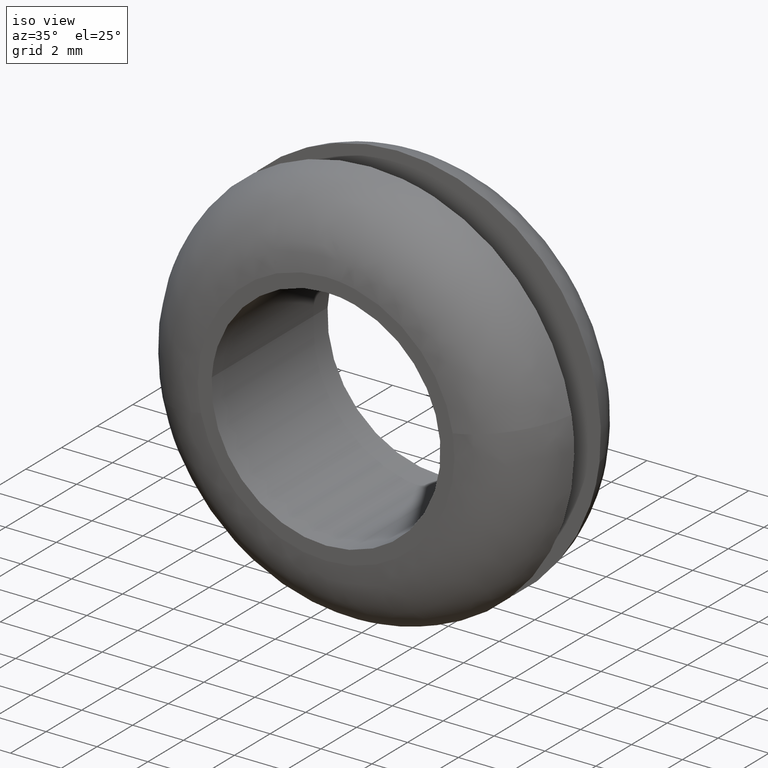
[diagram: clean part render]
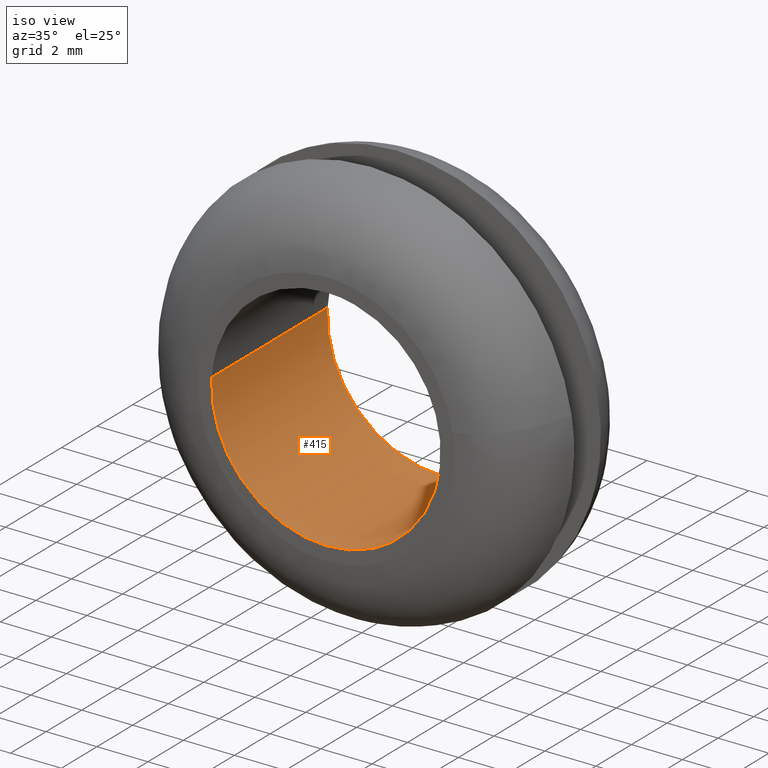
[diagram: same view with one face highlighted and labeled with its STEP entity id]
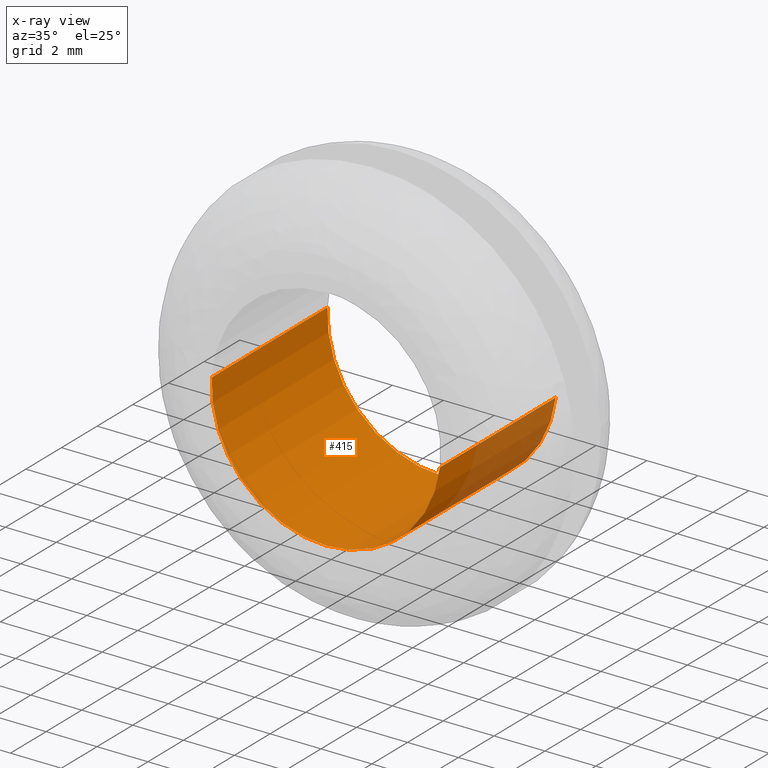
[diagram: x-ray of the same camera — body ghosted, the highlighted face saturated]
A machine part, iso view. The second image highlights one B-rep face of the part: STEP entity #415.
The next image is the same camera in x-ray: the body ghosted, the highlighted face saturated — about 10% of this face is hidden behind the body in this view.
In plain terms, the highlighted face is a freeform B-spline surface patch.
Its self-contained STEP definition (entity closure, byte-faithful):
#252=CARTESIAN_POINT('',(4.468542641703280,6.499999999999452,-0.531155965113607));
#253=VERTEX_POINT('',#252);
#271=CARTESIAN_POINT('',(4.468542641703280,-9.385989E-016,-0.531155965113607));
#272=VERTEX_POINT('',#271);
#273=CARTESIAN_POINT('',(4.468542641703280,6.499999999999452,-0.531155965113607));
#274=CARTESIAN_POINT('',(4.468542641703280,-9.385989E-016,-0.531155965113607));
#275=QUASI_UNIFORM_CURVE('',1,(#273,#274),.UNSPECIFIED.,.F.,.U.);
#276=EDGE_CURVE('',#253,#272,#275,.T.);
#295=CARTESIAN_POINT('',(-4.491606917686051,-9.545384E-016,0.274713117572676));
#296=VERTEX_POINT('',#295);
#310=CARTESIAN_POINT('',(-4.491606921645149,6.499999999999988,0.274713052839469));
#311=VERTEX_POINT('',#310);
#312=CARTESIAN_POINT('',(-4.491606921645149,6.499999999999988,0.274713052839469));
#313=CARTESIAN_POINT('',(-4.491606917686051,-9.545384E-016,0.274713117572676));
#314=QUASI_UNIFORM_CURVE('',1,(#312,#313),.UNSPECIFIED.,.F.,.U.);
#315=EDGE_CURVE('',#311,#296,#314,.T.);
#333=CARTESIAN_POINT('',(-4.491606592898400,6.662500000000001,0.274718427906856));
#334=CARTESIAN_POINT('',(-4.766325020805256,6.662500000000001,-4.216888164991544));
#335=CARTESIAN_POINT('',(-0.274718427906856,6.662500000000001,-4.491606592898400));
#336=CARTESIAN_POINT('',(3.966945708777753,6.662500000000001,-4.751037885296373));
#337=CARTESIAN_POINT('',(4.468542868636499,6.662500000000001,-0.531154055955413));
#338=CARTESIAN_POINT('',(-4.491606592898400,-0.166562500000001,0.274718427906856));
#339=CARTESIAN_POINT('',(-4.766325020805256,-0.166562500000001,-4.216888164991544));
#340=CARTESIAN_POINT('',(-0.274718427906856,-0.166562500000001,-4.491606592898400));
#341=CARTESIAN_POINT('',(3.966945708777753,-0.166562500000001,-4.751037885296373));
#342=CARTESIAN_POINT('',(4.468542868636499,-0.166562500000001,-0.531154055955413));
#350=(BOUNDED_SURFACE()B_SPLINE_SURFACE(2,1,((#333,#338),(#334,#339),(#335,#340),(#336,#341),(#337,#342)),.UNSPECIFIED.,.F.,.F.,.U.)B_SPLINE_SURFACE_WITH_KNOTS((3,2,3),(2,2),(0.0,7.455844122715709,14.613454480522790),(0.0,6.829062500000004),.UNSPECIFIED.)GEOMETRIC_REPRESENTATION_ITEM()RATIONAL_B_SPLINE_SURFACE(((1.0,1.0),(0.707106781186548,0.707106781186548),(1.0,1.0),(0.718822509939086,0.718822509939086),(0.977505800795127,0.977505800795127)))REPRESENTATION_ITEM('')SURFACE());
#351=CARTESIAN_POINT('',(0.0,6.500000000000000,-4.500000000000000));
#352=VERTEX_POINT('',#351);
#353=CARTESIAN_POINT('',(0.0,6.500000000000000,-4.500000000000000));
#354=CARTESIAN_POINT('',(3.996783647157785,6.500000000000002,-4.500000000000000));
#355=CARTESIAN_POINT('',(4.468542641703280,6.499999999999452,-0.531155965113607));
#363=(BOUNDED_CURVE()B_SPLINE_CURVE(2,(#353,#354,#355),.UNSPECIFIED.,.F.,.U.)B_SPLINE_CURVE_WITH_KNOTS((3,3),(0.0,0.229562401310019),.UNSPECIFIED.)CURVE()GEOMETRIC_REPRESENTATION_ITEM()RATIONAL_B_SPLINE_CURVE((1.0,0.731050917447052,0.956026612661954))REPRESENTATION_ITEM(''));
#364=EDGE_CURVE('',#352,#253,#363,.T.);
#365=ORIENTED_EDGE('',*,*,#364,.F.);
#366=CARTESIAN_POINT('',(-4.491606921645149,6.499999999999988,0.274713052839469));
#367=CARTESIAN_POINT('',(-4.500000000000000,6.500000000000000,0.137484739774620));
#368=CARTESIAN_POINT('',(-4.500000000000000,6.500000000000000,-3.061516E-016));
#369=CARTESIAN_POINT('',(-4.500000000000000,6.500000000000000,-4.500000000000000));
#370=CARTESIAN_POINT('',(0.0,6.500000000000000,-4.500000000000000));
#378=(BOUNDED_CURVE()B_SPLINE_CURVE(2,(#366,#367,#368,#369,#370),.UNSPECIFIED.,.F.,.U.)B_SPLINE_CURVE_WITH_KNOTS((3,2,3),(0.739333168727275,0.750000000000000,1.0),.UNSPECIFIED.)CURVE()GEOMETRIC_REPRESENTATION_ITEM()RATIONAL_B_SPLINE_CURVE((0.976072484210920,0.987503029815966,1.0,0.707106781186547,1.0))REPRESENTATION_ITEM(''));
#379=EDGE_CURVE('',#311,#352,#378,.T.);
#380=ORIENTED_EDGE('',*,*,#379,.F.);
#381=ORIENTED_EDGE('',*,*,#315,.T.);
#382=CARTESIAN_POINT('',(0.0,-8.266093E-016,-4.500000000000000));
#383=VERTEX_POINT('',#382);
#384=CARTESIAN_POINT('',(-4.491606917686051,-9.545384E-016,0.274713117572676));
#385=CARTESIAN_POINT('',(-4.500000000000000,-8.266093E-016,0.137484772231970));
#386=CARTESIAN_POINT('',(-4.500000000000000,-8.266093E-016,-3.061516E-016));
#387=CARTESIAN_POINT('',(-4.500000000000000,-8.266093E-016,-4.500000000000000));
#388=CARTESIAN_POINT('',(0.0,-8.266093E-016,-4.500000000000000));
#396=(BOUNDED_CURVE()B_SPLINE_CURVE(2,(#384,#385,#386,#387,#388),.UNSPECIFIED.,.F.,.U.)B_SPLINE_CURVE_WITH_KNOTS((3,2,3),(0.739333166240523,0.750000000000000,1.0),.UNSPECIFIED.)CURVE()GEOMETRIC_REPRESENTATION_ITEM()RATIONAL_B_SPLINE_CURVE((0.976072478881328,0.987503026902556,1.0,0.707106781186547,1.0))REPRESENTATION_ITEM(''));
#397=EDGE_CURVE('',#296,#383,#396,.T.);
#398=ORIENTED_EDGE('',*,*,#397,.T.);
#399=CARTESIAN_POINT('',(0.0,-8.266093E-016,-4.500000000000000));
#400=CARTESIAN_POINT('',(3.996783647157785,-8.266093E-016,-4.500000000000000));
#401=CARTESIAN_POINT('',(4.468542641703280,-9.385989E-016,-0.531155965113607));
#409=(BOUNDED_CURVE()B_SPLINE_CURVE(2,(#399,#400,#401),.UNSPECIFIED.,.F.,.U.)B_SPLINE_CURVE_WITH_KNOTS((3,3),(0.0,0.229562401310019),.UNSPECIFIED.)CURVE()GEOMETRIC_REPRESENTATION_ITEM()RATIONAL_B_SPLINE_CURVE((1.0,0.731050917447052,0.956026612661954))REPRESENTATION_ITEM(''));
#410=EDGE_CURVE('',#383,#272,#409,.T.);
#411=ORIENTED_EDGE('',*,*,#410,.T.);
#412=ORIENTED_EDGE('',*,*,#276,.F.);
#413=EDGE_LOOP('',(#365,#380,#381,#398,#411,#412));
#414=FACE_OUTER_BOUND('',#413,.T.);
#415=ADVANCED_FACE('',(#414),#350,.F.);